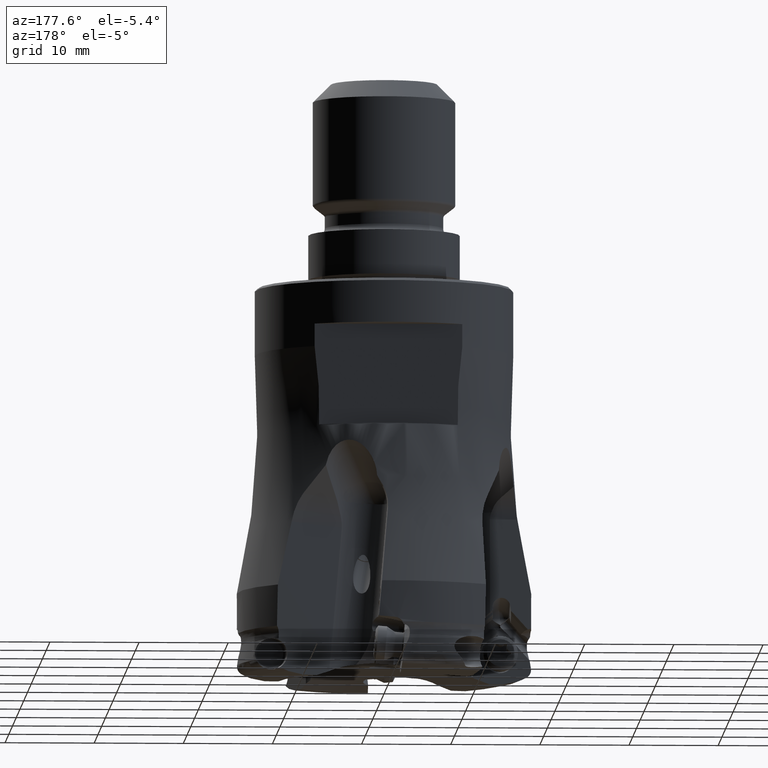
[diagram: clean part render]
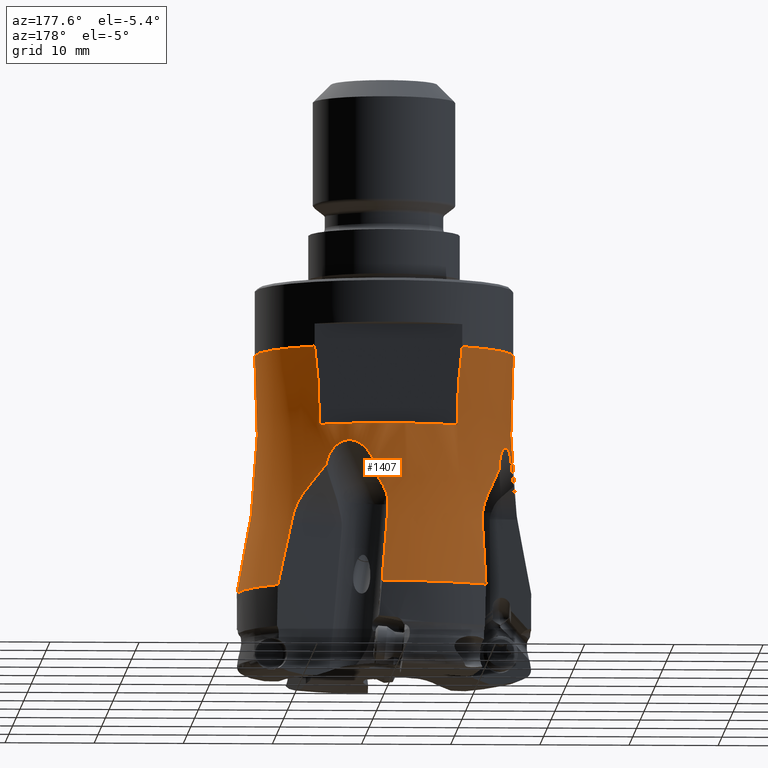
[diagram: same view with one face highlighted and labeled with its STEP entity id]
A machine part, auxiliary view. The second image highlights one B-rep face of the part: STEP entity #1407.
In plain terms, the highlighted toroidal blend (fillet) surface has major radius 99.2 mm and minor (blend) radius 85 mm.
Its self-contained STEP definition (entity closure, byte-faithful):
#138=TOROIDAL_SURFACE('',#9475,99.19999999999,85.);
#1407=ADVANCED_FACE('',(#1976),#138,.F.);
#1976=FACE_OUTER_BOUND('',#2467,.T.);
#2467=EDGE_LOOP('',(#4019,#4020,#4021,#4022,#4023,#4024,#4025,#4026,#4027,
#4028,#4029,#4030,#4031,#4032,#4033,#4034,#4035,#4036,#4037,#4038,#4039,
#4040,#4041,#4042));
#2919=CIRCLE('',#9347,85.);
#2923=CIRCLE('',#9351,85.);
#2973=CIRCLE('',#9468,16.49999999999);
#2974=CIRCLE('',#9470,16.49999999999);
#2975=CIRCLE('',#9471,14.5);
#2976=CIRCLE('',#9472,14.21677474857);
#2977=CIRCLE('',#9473,14.5);
#2978=CIRCLE('',#9474,16.49999999999);
#4019=ORIENTED_EDGE('',*,*,#7579,.T.);
#4020=ORIENTED_EDGE('',*,*,#7580,.T.);
#4021=ORIENTED_EDGE('',*,*,#7581,.T.);
#4022=ORIENTED_EDGE('',*,*,#7582,.F.);
#4023=ORIENTED_EDGE('',*,*,#7583,.T.);
#4024=ORIENTED_EDGE('',*,*,#7584,.T.);
#4025=ORIENTED_EDGE('',*,*,#7585,.T.);
#4026=ORIENTED_EDGE('',*,*,#7586,.T.);
#4027=ORIENTED_EDGE('',*,*,#7587,.T.);
#4028=ORIENTED_EDGE('',*,*,#7588,.T.);
#4029=ORIENTED_EDGE('',*,*,#7536,.F.);
#4030=ORIENTED_EDGE('',*,*,#7578,.F.);
#4031=ORIENTED_EDGE('',*,*,#7336,.F.);
#4032=ORIENTED_EDGE('',*,*,#7589,.T.);
#4033=ORIENTED_EDGE('',*,*,#7590,.T.);
#4034=ORIENTED_EDGE('',*,*,#7591,.T.);
#4035=ORIENTED_EDGE('',*,*,#7592,.T.);
#4036=ORIENTED_EDGE('',*,*,#7593,.T.);
#4037=ORIENTED_EDGE('',*,*,#7330,.F.);
#4038=ORIENTED_EDGE('',*,*,#7594,.F.);
#4039=ORIENTED_EDGE('',*,*,#7245,.F.);
#4040=ORIENTED_EDGE('',*,*,#7595,.T.);
#4041=ORIENTED_EDGE('',*,*,#7596,.T.);
#4042=ORIENTED_EDGE('',*,*,#7597,.T.);
#6288=VERTEX_POINT('',#13748);
#6289=VERTEX_POINT('',#13753);
#6353=VERTEX_POINT('',#14168);
#6354=VERTEX_POINT('',#14170);
#6359=VERTEX_POINT('',#14186);
#6360=VERTEX_POINT('',#14188);
#6507=VERTEX_POINT('',#15812);
#6508=VERTEX_POINT('',#15817);
#6540=VERTEX_POINT('',#16286);
#6541=VERTEX_POINT('',#16287);
#6542=VERTEX_POINT('',#16295);
#6543=VERTEX_POINT('',#16300);
#6544=VERTEX_POINT('',#16302);
#6545=VERTEX_POINT('',#16307);
#6546=VERTEX_POINT('',#16312);
#6547=VERTEX_POINT('',#16317);
#6548=VERTEX_POINT('',#16328);
#6549=VERTEX_POINT('',#16335);
#6550=VERTEX_POINT('',#16344);
#6551=VERTEX_POINT('',#16349);
#6552=VERTEX_POINT('',#16351);
#6553=VERTEX_POINT('',#16356);
#6554=VERTEX_POINT('',#16363);
#6555=VERTEX_POINT('',#16368);
#7245=EDGE_CURVE('',#6288,#6289,#8616,.T.);
#7330=EDGE_CURVE('',#6353,#6354,#2919,.T.);
#7336=EDGE_CURVE('',#6359,#6360,#2923,.T.);
#7536=EDGE_CURVE('',#6507,#6508,#8756,.T.);
#7578=EDGE_CURVE('',#6360,#6507,#2973,.T.);
#7579=EDGE_CURVE('',#6540,#6541,#8780,.T.);
#7580=EDGE_CURVE('',#6541,#6542,#8781,.T.);
#7581=EDGE_CURVE('',#6542,#6543,#8782,.T.);
#7582=EDGE_CURVE('',#6544,#6543,#2974,.T.);
#7583=EDGE_CURVE('',#6544,#6545,#8783,.T.);
#7584=EDGE_CURVE('',#6545,#6546,#8784,.T.);
#7585=EDGE_CURVE('',#6546,#6547,#8785,.T.);
#7586=EDGE_CURVE('',#6547,#6548,#8786,.T.);
#7587=EDGE_CURVE('',#6548,#6549,#8787,.T.);
#7588=EDGE_CURVE('',#6549,#6508,#8788,.T.);
#7589=EDGE_CURVE('',#6359,#6550,#2975,.T.);
#7590=EDGE_CURVE('',#6550,#6551,#8789,.T.);
#7591=EDGE_CURVE('',#6551,#6552,#2976,.T.);
#7592=EDGE_CURVE('',#6552,#6553,#8790,.T.);
#7593=EDGE_CURVE('',#6553,#6354,#2977,.T.);
#7594=EDGE_CURVE('',#6289,#6353,#2978,.T.);
#7595=EDGE_CURVE('',#6288,#6554,#8791,.T.);
#7596=EDGE_CURVE('',#6554,#6555,#8792,.T.);
#7597=EDGE_CURVE('',#6555,#6540,#8793,.T.);
#8616=B_SPLINE_CURVE_WITH_KNOTS('',3,(#13749,#13750,#13751,#13752),
 .UNSPECIFIED.,.F.,.F.,(4,4),(0.,1.),.UNSPECIFIED.);
#8756=B_SPLINE_CURVE_WITH_KNOTS('',3,(#15813,#15814,#15815,#15816),
 .UNSPECIFIED.,.F.,.F.,(4,4),(0.,1.),.UNSPECIFIED.);
#8780=B_SPLINE_CURVE_WITH_KNOTS('',3,(#16280,#16281,#16282,#16283,#16284,
#16285),.UNSPECIFIED.,.F.,.F.,(4,1,1,4),(0.,0.3333333333333,0.6666666666667,
1.),.UNSPECIFIED.);
#8781=B_SPLINE_CURVE_WITH_KNOTS('',3,(#16288,#16289,#16290,#16291,#16292,
#16293,#16294),.UNSPECIFIED.,.F.,.F.,(4,3,4),(0.,0.556840053927223,1.),
 .UNSPECIFIED.);
#8782=B_SPLINE_CURVE_WITH_KNOTS('',3,(#16296,#16297,#16298,#16299),
 .UNSPECIFIED.,.F.,.F.,(4,4),(0.,1.),.UNSPECIFIED.);
#8783=B_SPLINE_CURVE_WITH_KNOTS('',3,(#16303,#16304,#16305,#16306),
 .UNSPECIFIED.,.F.,.F.,(4,4),(0.,1.),.UNSPECIFIED.);
#8784=B_SPLINE_CURVE_WITH_KNOTS('',3,(#16308,#16309,#16310,#16311),
 .UNSPECIFIED.,.F.,.F.,(4,4),(0.,1.),.UNSPECIFIED.);
#8785=B_SPLINE_CURVE_WITH_KNOTS('',3,(#16313,#16314,#16315,#16316),
 .UNSPECIFIED.,.F.,.F.,(4,4),(0.,1.),.UNSPECIFIED.);
#8786=B_SPLINE_CURVE_WITH_KNOTS('',3,(#16318,#16319,#16320,#16321,#16322,
#16323,#16324,#16325,#16326,#16327),.UNSPECIFIED.,.F.,.F.,(4,2,2,2,4),(0.,
0.25,0.5,0.75,1.),.UNSPECIFIED.);
#8787=B_SPLINE_CURVE_WITH_KNOTS('',3,(#16329,#16330,#16331,#16332,#16333,
#16334),.UNSPECIFIED.,.F.,.F.,(4,1,1,4),(0.,0.3333333333333,0.6666666666667,
1.),.UNSPECIFIED.);
#8788=B_SPLINE_CURVE_WITH_KNOTS('',3,(#16336,#16337,#16338,#16339,#16340,
#16341,#16342),.UNSPECIFIED.,.F.,.F.,(4,3,4),(0.,0.556840048516883,1.),
 .UNSPECIFIED.);
#8789=B_SPLINE_CURVE_WITH_KNOTS('',3,(#16345,#16346,#16347,#16348),
 .UNSPECIFIED.,.F.,.F.,(4,4),(0.,1.),.UNSPECIFIED.);
#8790=B_SPLINE_CURVE_WITH_KNOTS('',3,(#16352,#16353,#16354,#16355),
 .UNSPECIFIED.,.F.,.F.,(4,4),(0.,1.),.UNSPECIFIED.);
#8791=B_SPLINE_CURVE_WITH_KNOTS('',3,(#16359,#16360,#16361,#16362),
 .UNSPECIFIED.,.F.,.F.,(4,4),(0.,1.),.UNSPECIFIED.);
#8792=B_SPLINE_CURVE_WITH_KNOTS('',3,(#16364,#16365,#16366,#16367),
 .UNSPECIFIED.,.F.,.F.,(4,4),(0.,1.),.UNSPECIFIED.);
#8793=B_SPLINE_CURVE_WITH_KNOTS('',3,(#16369,#16370,#16371,#16372,#16373,
#16374,#16375,#16376,#16377,#16378),.UNSPECIFIED.,.F.,.F.,(4,2,2,2,4),(0.,
0.25,0.5,0.75,1.),.UNSPECIFIED.);
#9347=AXIS2_PLACEMENT_3D('',#14169,#10535,#10536);
#9351=AXIS2_PLACEMENT_3D('',#14187,#10543,#10544);
#9468=AXIS2_PLACEMENT_3D('',#16278,#10826,#10827);
#9470=AXIS2_PLACEMENT_3D('',#16301,#10830,#10831);
#9471=AXIS2_PLACEMENT_3D('',#16343,#10832,#10833);
#9472=AXIS2_PLACEMENT_3D('',#16350,#10834,#10835);
#9473=AXIS2_PLACEMENT_3D('',#16357,#10836,#10837);
#9474=AXIS2_PLACEMENT_3D('',#16358,#10838,#10839);
#9475=AXIS2_PLACEMENT_3D('',#16379,#10840,#10841);
#10535=DIRECTION('',(0.,1.,0.));
#10536=DIRECTION('',(-0.972941176470577,0.,-0.231052953082295));
#10543=DIRECTION('',(0.,1.,0.));
#10544=DIRECTION('',(0.996470588235289,0.,0.0839426398323091));
#10826=DIRECTION('',(0.,0.,-1.));
#10827=DIRECTION('',(-1.,0.,0.));
#10830=DIRECTION('',(0.,0.,-1.));
#10831=DIRECTION('',(-0.662009752050628,0.749495222259532,0.));
#10832=DIRECTION('',(0.,0.,-1.));
#10833=DIRECTION('',(-1.,4.117739815527E-14,0.));
#10834=DIRECTION('',(0.,0.,-1.));
#10835=DIRECTION('',(-0.547142681707707,0.837039357410211,0.));
#10836=DIRECTION('',(0.,0.,-1.));
#10837=DIRECTION('',(0.571374211785022,0.820689655172432,0.));
#10838=DIRECTION('',(0.,0.,-1.));
#10839=DIRECTION('',(0.749495222259576,0.662009752050579,0.));
#10840=DIRECTION('',(0.,0.,-1.));
#10841=DIRECTION('',(-1.,0.,0.));
#13748=CARTESIAN_POINT('',(10.8039195105108,10.5831014793114,-27.158505867989));
#13749=CARTESIAN_POINT('',(10.8039195105173,10.5831014792904,-27.1585058679841));
#13750=CARTESIAN_POINT('',(11.2280909707597,10.6606504720665,-29.5621713823604));
#13751=CARTESIAN_POINT('',(11.7506479997979,10.7746104843198,-31.9425765613983));
#13752=CARTESIAN_POINT('',(12.3666711672618,10.9231609088306,-34.3008844577753));
#13753=CARTESIAN_POINT('',(12.3666711672709,10.9231609088353,-34.3008844577727));
#14168=CARTESIAN_POINT('',(16.49999999999,-1.190833316485E-14,-34.30088445781));
#14169=CARTESIAN_POINT('',(99.19999999999,0.,-14.66138344582));
#14170=CARTESIAN_POINT('',(14.49999999999,-1.274127853021E-14,-7.526259060076));
#14186=CARTESIAN_POINT('',(-14.49999999999,-1.765544620468E-14,-7.526259060074));
#14187=CARTESIAN_POINT('',(-99.19999999999,-2.672280595869E-14,-14.66138344582));
#14188=CARTESIAN_POINT('',(-16.5,-1.54260538887E-14,-34.30088445781));
#15812=CARTESIAN_POINT('',(-16.4750960246637,0.906206911211468,-34.3008844562875));
#15813=CARTESIAN_POINT('',(-16.4750960243063,0.90620691107828,-34.3008844547652));
#15814=CARTESIAN_POINT('',(-15.8261208353603,0.662551340401083,-31.5158885380662));
#15815=CARTESIAN_POINT('',(-15.3158213263254,0.416705230049779,-28.7058546383208));
#15816=CARTESIAN_POINT('',(-14.941476055485,0.168711571562748,-25.8712741510615));
#15817=CARTESIAN_POINT('',(-14.9414760622593,0.16871137990988,-25.8712741856686));
#16278=CARTESIAN_POINT('',(1.7763568394E-14,-1.571465872686E-14,-34.30088445781));
#16280=CARTESIAN_POINT('',(1.387465935116,14.47554187829,-22.27737919243));
#16281=CARTESIAN_POINT('',(1.311403113079,14.49473871811,-22.40912386477));
#16282=CARTESIAN_POINT('',(1.159236915743,14.5325031871,-22.67267943104));
#16283=CARTESIAN_POINT('',(0.9308831398488,14.5873905646,-23.06820141701));
#16284=CARTESIAN_POINT('',(0.778576121313,14.62277553322,-23.33200454613));
#16285=CARTESIAN_POINT('',(0.7024057015388,14.64018239524,-23.46393558321));
#16286=CARTESIAN_POINT('',(1.387465935116,14.47554187829,-22.27737919243));
#16287=CARTESIAN_POINT('',(0.70240569075513,14.6401822064981,-23.4639356018865));
#16288=CARTESIAN_POINT('',(0.70240569075513,14.6401822064981,-23.4639356018865));
#16289=CARTESIAN_POINT('',(0.471261584038406,14.6930044645724,-23.8642889384111));
#16290=CARTESIAN_POINT('',(0.306563600578067,14.7452798812259,-24.310533275223));
#16291=CARTESIAN_POINT('',(0.222146707354834,14.8009233490624,-24.764711847714));
#16292=CARTESIAN_POINT('',(0.154611914975894,14.8454389655948,-25.1280615805102));
#16293=CARTESIAN_POINT('',(0.136545539431815,14.892921587563,-25.5036147805485));
#16294=CARTESIAN_POINT('',(0.168711573177913,14.9414760579231,-25.871274169523));
#16295=CARTESIAN_POINT('',(0.168711573177913,14.9414760579231,-25.871274169523));
#16296=CARTESIAN_POINT('',(0.168711382169561,14.9414758699835,-25.871274211054));
#16297=CARTESIAN_POINT('',(0.416705040858037,15.3158211453619,-28.705854700616));
#16298=CARTESIAN_POINT('',(0.662551340663262,15.826120836059,-31.5158885410637));
#16299=CARTESIAN_POINT('',(0.906206911077745,16.4750960243051,-34.3008844547599));
#16300=CARTESIAN_POINT('',(0.906206911211167,16.4750960246631,-34.3008844562849));
#16301=CARTESIAN_POINT('',(1.7763568394E-14,-1.571465872686E-14,-34.30088445781));
#16302=CARTESIAN_POINT('',(-10.9231609088318,12.3666711672664,-34.3008844577927));
#16303=CARTESIAN_POINT('',(-10.9231609088306,12.3666711672617,-34.3008844577754));
#16304=CARTESIAN_POINT('',(-10.7746105294287,11.7506481868597,-31.9425772775231));
#16305=CARTESIAN_POINT('',(-10.6606505413663,11.2280912883345,-29.5621728279772));
#16306=CARTESIAN_POINT('',(-10.5831015499463,10.8039198969293,-27.1585080576631));
#16307=CARTESIAN_POINT('',(-10.5831014796439,10.8039197069364,-27.1585081025807));
#16308=CARTESIAN_POINT('',(-10.5831014796632,10.8039195123397,-27.158505878402));
#16309=CARTESIAN_POINT('',(-10.546476555896,10.6035913730166,-26.0233002032169));
#16310=CARTESIAN_POINT('',(-10.7869404467188,10.1900939465671,-24.9473645666487));
#16311=CARTESIAN_POINT('',(-11.1991612619733,9.55745370826055,-24.0758966612267));
#16312=CARTESIAN_POINT('',(-11.1991612619644,9.55745370826931,-24.0758966612166));
#16313=CARTESIAN_POINT('',(-11.1991612619555,9.55745370827789,-24.0758966612061));
#16314=CARTESIAN_POINT('',(-11.7043422081823,8.78214643998937,-23.0079035740794));
#16315=CARTESIAN_POINT('',(-12.1746465860348,7.95390306400482,-21.9669223993588));
#16316=CARTESIAN_POINT('',(-12.5951450742893,7.05006366301067,-20.9645159007062));
#16317=CARTESIAN_POINT('',(-12.59517185809,7.050082151441,-20.96451046577));
#16318=CARTESIAN_POINT('',(-12.5951521430494,7.0500510768022,-20.9645161788082));
#16319=CARTESIAN_POINT('',(-12.617436801929,6.88659495711278,-20.1523547277827));
#16320=CARTESIAN_POINT('',(-12.7579760757127,6.55251047322444,-19.3793727113577));
#16321=CARTESIAN_POINT('',(-13.2210336511014,5.41692326698587,-18.2646940084198));
#16322=CARTESIAN_POINT('',(-13.5384576135163,4.56818155255559,-18.0493031574818));
#16323=CARTESIAN_POINT('',(-13.9794835611038,3.07109138783008,-18.6158342495826));
#16324=CARTESIAN_POINT('',(-14.1104790323589,2.48109459358832,-19.2442801012589));
#16325=CARTESIAN_POINT('',(-14.319031607558,1.65702429473642,-20.6513387785304));
#16326=CARTESIAN_POINT('',(-14.3989235251014,1.40877559540612,-21.452182629371));
#16327=CARTESIAN_POINT('',(-14.4755419242123,1.38746868787942,-22.2773768219052));
#16328=CARTESIAN_POINT('',(-14.4755400259073,1.38746713433697,-22.2773767885633));
#16329=CARTESIAN_POINT('',(-14.47554200659,1.387465639103,-22.27737917338));
#16330=CARTESIAN_POINT('',(-14.49473884729,1.311402813585,-22.40912385175));
#16331=CARTESIAN_POINT('',(-14.53250557792,1.159237201482,-22.67267918428));
#16332=CARTESIAN_POINT('',(-14.58739605452,0.9308834198749,-23.06820086109));
#16333=CARTESIAN_POINT('',(-14.62277515504,0.7785761028396,-23.33200457812));
#16334=CARTESIAN_POINT('',(-14.64018201786,0.7024056795746,-23.46393562125));
#16335=CARTESIAN_POINT('',(-14.6401820178535,0.702405679574304,-23.4639356212507));
#16336=CARTESIAN_POINT('',(-14.6401820178535,0.702405679574304,-23.4639356212507));
#16337=CARTESIAN_POINT('',(-14.6930042759491,0.47126157283227,-23.8642889579984));
#16338=CARTESIAN_POINT('',(-14.7452798812929,0.30656360038218,-24.3105332757867));
#16339=CARTESIAN_POINT('',(-14.8009233491582,0.222146707209556,-24.7647118484957));
#16340=CARTESIAN_POINT('',(-14.8454389666903,0.154611913389342,-25.1280615894383));
#16341=CARTESIAN_POINT('',(-14.8929215908126,0.136545345459629,-25.5036147884624));
#16342=CARTESIAN_POINT('',(-14.9414760622593,0.16871137990988,-25.8712741856686));
#16343=CARTESIAN_POINT('',(1.7763568394E-14,-1.496384539495E-14,-7.526259060075));
#16344=CARTESIAN_POINT('',(-8.28492607087398,11.8999999999988,-7.52625906007393));
#16345=CARTESIAN_POINT('',(-8.28492607086648,11.9,-7.52625906007286));
#16346=CARTESIAN_POINT('',(-7.85350838025205,11.9,-10.4524350784504));
#16347=CARTESIAN_POINT('',(-7.67121463530291,11.9,-13.3929062679891));
#16348=CARTESIAN_POINT('',(-7.77860426115663,11.9,-16.3500000000005));
#16349=CARTESIAN_POINT('',(-7.7786042611532,11.9,-16.3500000000002));
#16350=CARTESIAN_POINT('',(1.7763568394E-14,-1.596377729237E-14,-16.35));
#16351=CARTESIAN_POINT('',(7.77860426115323,11.9,-16.3500000000003));
#16352=CARTESIAN_POINT('',(7.77860426115668,11.9,-16.3500000000006));
#16353=CARTESIAN_POINT('',(7.67121463530295,11.9,-13.3929062679892));
#16354=CARTESIAN_POINT('',(7.8535083802521,11.9,-10.4524350784505));
#16355=CARTESIAN_POINT('',(8.28492607086653,11.9,-7.52625906007287));
#16356=CARTESIAN_POINT('',(8.28492607087486,11.9,-7.52625906007393));
#16357=CARTESIAN_POINT('',(1.7763568394E-14,-1.496384539495E-14,-7.526259060075));
#16358=CARTESIAN_POINT('',(1.7763568394E-14,-1.571465872686E-14,-34.30088445781));
#16359=CARTESIAN_POINT('',(10.8039195105023,10.5831014793237,-27.1585058679946));
#16360=CARTESIAN_POINT('',(10.6035913703737,10.5464765573002,-26.0233001962337));
#16361=CARTESIAN_POINT('',(10.1900939443864,10.7869404481307,-24.9473645633835));
#16362=CARTESIAN_POINT('',(9.55745370777485,11.1991612622898,-24.0758966605576));
#16363=CARTESIAN_POINT('',(9.55745370778164,11.1991612622829,-24.0758966605494));
#16364=CARTESIAN_POINT('',(9.55745370777271,11.1991612622153,-24.075896660524));
#16365=CARTESIAN_POINT('',(8.78214161360935,11.7043453528962,-23.007896925747));
#16366=CARTESIAN_POINT('',(7.95389278515981,12.1746524418462,-21.9669094527848));
#16367=CARTESIAN_POINT('',(7.05004684751443,12.5951528974511,-20.9644972514337));
#16368=CARTESIAN_POINT('',(7.05004672321408,12.5951529786687,-20.9644973880444));
#16369=CARTESIAN_POINT('',(7.05004736878328,12.5951525932515,-20.9644971056491));
#16370=CARTESIAN_POINT('',(6.8865885823224,12.6174391056579,-20.1523379119134));
#16371=CARTESIAN_POINT('',(6.55250204154106,12.7579796541383,-19.3793586910685));
#16372=CARTESIAN_POINT('',(5.4169112364955,13.2210384476459,-18.2646885202505));
#16373=CARTESIAN_POINT('',(4.56816949528572,13.5384615715648,-18.0493047305246));
#16374=CARTESIAN_POINT('',(3.07108466753321,13.9794852121216,-18.6158415078061));
#16375=CARTESIAN_POINT('',(2.48109047562716,14.1104800800627,-19.2442868304034));
#16376=CARTESIAN_POINT('',(1.65702347563375,14.3190320459438,-20.6513442370633));
#16377=CARTESIAN_POINT('',(1.4087759850738,14.3989238366293,-21.4521868013257));
#16378=CARTESIAN_POINT('',(1.38746963502106,14.4755420744876,-22.2773794892414));
#16379=CARTESIAN_POINT('',(1.7763568394E-14,-1.59872115546E-14,-14.66138344582));